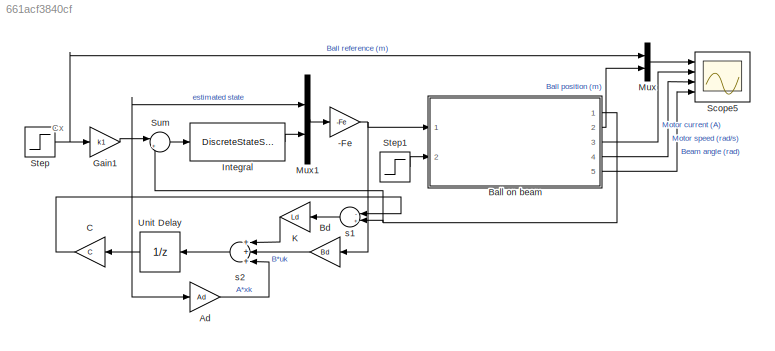
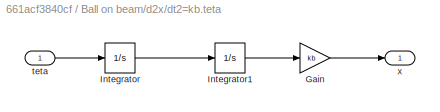
MODEL slx_661acf3840cf
KIND model
CONFIG AbsTol = auto
CONFIG EnableMultiTasking = on
CONFIG FixedStep = auto
CONFIG MaxStep = auto
CONFIG MinStep = auto
CONFIG RelTol = 1e-3
CONFIG SampleTimeConstraint = Unconstrained
CONFIG Solver = ode45
CONFIG SolverName = ode45
CONFIG StartTime = 0.0
CONFIG StopTime = 20
BLOCK [Gain] -Fe
  Gain = -Fe
  Multiplication = Matrix(K*u) (u vector)
  OutDataTypeStr = Inherit: Inherit via internal rule
  ParamDataTypeStr = Inherit: Inherit via internal rule
  SaturateOnIntegerOverflow = off
BLOCK [Gain] Ad
  Gain = Ad
  Multiplication = Matrix(K*u) (u vector)
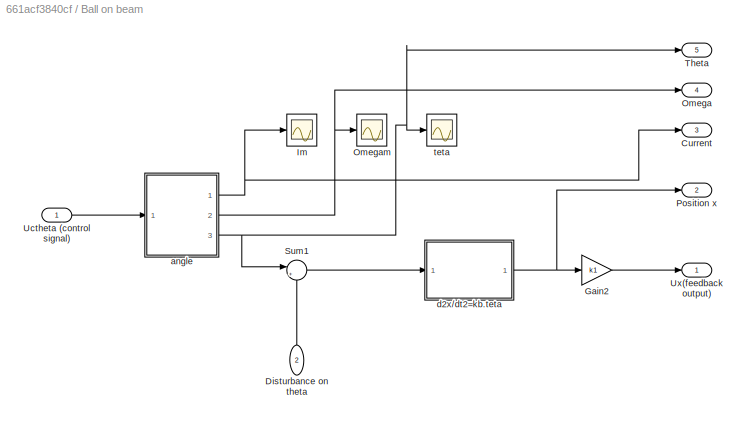
BLOCK [SubSystem] Ball on beam
  Ports = [2, 5]
  RequestExecContextInheritance = off
BLOCK [Outport] Ball on beam/ Omega
  IconDisplay = Port number
  Port = 4
BLOCK [Outport] Ball on beam/ Theta
  IconDisplay = Port number
  Port = 5
BLOCK [Outport] Ball on beam/Current
  IconDisplay = Port number
  Port = 3
BLOCK [Inport] Ball on beam/Disturbance on theta
  IconDisplay = Port number
  Port = 2
BLOCK [Gain] Ball on beam/Gain2
  Gain = k1
  OutDataTypeStr = Inherit: Inherit via internal rule
  ParamDataTypeStr = Inherit: Inherit via internal rule
  SaturateOnIntegerOverflow = off
BLOCK [Scope] Ball on beam/Im
  Floating = off
  NumInputPorts = 1
  Ports = [1]
  ScopeSpecificationString = Simulink.scopes.TimeScopeBlockCfg('CurrentConfiguration', extmgr.ConfigurationSet(extmgr.Configuration('Core','General UI',true),extmgr.Configuration('Core','Source UI',true),extmgr.Configuration('Sources','WiredSimulink',true,'DataLoggingVariableName','ScopeData1'),extmgr.Configuration('Visuals','Time Domain',true,'SerializedDisplays',{struct('MinYLimReal','-19.2391','MaxYLimReal','8.06624','YLab...<+1450ch>
BLOCK [Scope] Ball on beam/Omegam
  Floating = off
  NumInputPorts = 1
  Ports = [1]
  ScopeSpecificationString = Simulink.scopes.TimeScopeBlockCfg('CurrentConfiguration', extmgr.ConfigurationSet(extmgr.Configuration('Core','General UI',true),extmgr.Configuration('Core','Source UI',true),extmgr.Configuration('Sources','WiredSimulink',true,'DataLoggingVariableName','ScopeData2'),extmgr.Configuration('Visuals','Time Domain',true,'SerializedDisplays',{struct('MinYLimReal','-1.00000','MaxYLimReal','1.00000','YLab...<+1431ch>
BLOCK [Outport] Ball on beam/Position x
  IconDisplay = Port number
  Port = 2
BLOCK [Sum] Ball on beam/Sum1
  IconShape = round
  Inputs = |++
  Ports = [2, 1]
BLOCK [Inport] Ball on beam/Uctheta (control signal)
  IconDisplay = Port number
BLOCK [Outport] Ball on beam/Ux(feedback output)
  IconDisplay = Port number
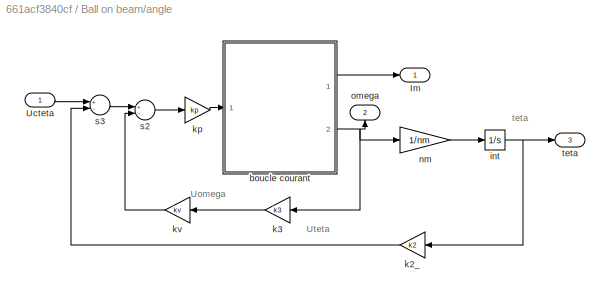
BLOCK [SubSystem] Ball on beam/angle
  Ports = [1, 3]
  RequestExecContextInheritance = off
BLOCK [Outport] Ball on beam/angle/Im
  IconDisplay = Port number
BLOCK [Inport] Ball on beam/angle/Ucteta
  IconDisplay = Port number
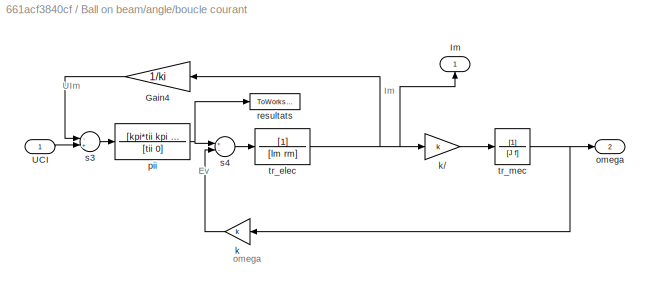
BLOCK [SubSystem] Ball on beam/angle/boucle courant
  Ports = [1, 2]
  RequestExecContextInheritance = off
BLOCK [Gain] Ball on beam/angle/boucle courant/Gain4
  Gain = 1/ki
BLOCK [Outport] Ball on beam/angle/boucle courant/Im
  IconDisplay = Port number
BLOCK [Inport] Ball on beam/angle/boucle courant/UCI
  IconDisplay = Port number
BLOCK [Gain] Ball on beam/angle/boucle courant/k
  Gain = k
BLOCK [Gain] Ball on beam/angle/boucle courant/k// 
  Gain = k
BLOCK [Outport] Ball on beam/angle/boucle courant/omega
  IconDisplay = Port number
  Port = 2
BLOCK [TransferFcn] Ball on beam/angle/boucle courant/pii
  Denominator = [tii 0]
  Numerator = [kpi*tii kpi ]
BLOCK [ToWorkspace] Ball on beam/angle/boucle courant/resultats
  MaxDataPoints = 20000
  Ports = [1]
  VariableName = Um
BLOCK [Sum] Ball on beam/angle/boucle courant/s3
  Inputs = -+
  Ports = [2, 1]
BLOCK [Sum] Ball on beam/angle/boucle courant/s4
  Inputs = +-
  Ports = [2, 1]
BLOCK [TransferFcn] Ball on beam/angle/boucle courant/tr_elec
  Denominator = [lm rm]
BLOCK [TransferFcn] Ball on beam/angle/boucle courant/tr_mec
  Denominator = [J f]
BLOCK [Integrator] Ball on beam/angle/int
  Ports = [1, 1]
BLOCK [Gain] Ball on beam/angle/k2_
  Gain = k2
BLOCK [Gain] Ball on beam/angle/k3
  Gain = k3
BLOCK [Gain] Ball on beam/angle/kp
  Gain = kp
BLOCK [Gain] Ball on beam/angle/kv
  Gain = kv
BLOCK [Gain] Ball on beam/angle/nm
  Gain = 1/nm
BLOCK [Outport] Ball on beam/angle/omega
  IconDisplay = Port number
  Port = 2
BLOCK [Sum] Ball on beam/angle/s2
  Inputs = +-
  Ports = [2, 1]
BLOCK [Sum] Ball on beam/angle/s3
  Inputs = +-
  Ports = [2, 1]
BLOCK [Outport] Ball on beam/angle/teta
  IconDisplay = Port number
  Port = 3
BLOCK [SubSystem] Ball on beam/d2x//dt2=kb.teta 
  Ports = [1, 1]
  RequestExecContextInheritance = off
BLOCK [Gain] Ball on beam/d2x//dt2=kb.teta /Gain
  Gain = kb
  OutDataTypeStr = Inherit: Inherit via internal rule
  ParamDataTypeStr = Inherit: Inherit via internal rule
  SaturateOnIntegerOverflow = off
BLOCK [Integrator] Ball on beam/d2x//dt2=kb.teta /Integrator
  Ports = [1, 1]
BLOCK [Integrator] Ball on beam/d2x//dt2=kb.teta /Integrator1
  Ports = [1, 1]
BLOCK [Inport] Ball on beam/d2x//dt2=kb.teta /teta
  IconDisplay = Port number
BLOCK [Outport] Ball on beam/d2x//dt2=kb.teta /x
  IconDisplay = Port number
BLOCK [Scope] Ball on beam/teta
  Floating = off
  NumInputPorts = 1
  Ports = [1]
  ScopeSpecificationString = Simulink.scopes.TimeScopeBlockCfg('CurrentConfiguration', extmgr.ConfigurationSet(extmgr.Configuration('Core','General UI',true),extmgr.Configuration('Core','Source UI',true),extmgr.Configuration('Sources','WiredSimulink',true),extmgr.Configuration('Visuals','Time Domain',true,'SerializedDisplays',{struct('MinYLimReal','-1.00000','MaxYLimReal','1.00000','YLabelReal','','MinYLimMag','0.00000','MaxY...<+1367ch>
BLOCK [Gain] Bd
  Gain = Bd
  Multiplication = Matrix(K*u) (u vector)
BLOCK [Gain] C
  Gain = C
  Multiplication = Matrix(K*u) (u vector)
BLOCK [Gain] Gain1
  Gain = k1
  OutDataTypeStr = Inherit: Inherit via internal rule
  ParamDataTypeStr = Inherit: Inherit via internal rule
  SaturateOnIntegerOverflow = off
BLOCK [DiscreteStateSpace] Integral
  A = Ai
  B = Bi
  C = Ci
  D = Di
  SampleTime = Te
BLOCK [Gain] K
  Gain = Ld
  Multiplication = Matrix(K*u) (u vector)
BLOCK [Mux] Mux
  DisplayOption = bar
  Inputs = 2
  Ports = [2, 1]
BLOCK [Mux] Mux1
  DisplayOption = bar
  Inputs = 2
  Ports = [2, 1]
BLOCK [Scope] Scope5
  Floating = off
  NumInputPorts = 4
  Ports = [4]
  ScopeSpecificationString = Simulink.scopes.TimeScopeBlockCfg('CurrentConfiguration', extmgr.ConfigurationSet(extmgr.Configuration('Core','General UI',true,'FigureColor',[1 1 1]),extmgr.Configuration('Core','Source UI',true),extmgr.Configuration('Sources','WiredSimulink',true,'DataLoggingVariableName','ScopeData1'),extmgr.Configuration('Visuals','Time Domain',true,'SerializedDisplays',{struct('MinYLimReal','-0.0184','MaxYLim...<+4130ch>
BLOCK [Step] Step
  After = 0.1
  SampleTime = 0
BLOCK [Step] Step1
  After = 1*pi/180
  SampleTime = 0
  Time = 10
BLOCK [Sum] Sum
  IconShape = round
  InputSameDT = off
  Inputs = |+-
  OutDataTypeStr = Inherit: Inherit via internal rule
  Ports = [2, 1]
  SaturateOnIntegerOverflow = off
BLOCK [UnitDelay] Unit Delay
  HasFrameUpgradeWarning = on
  SampleTime = Te
BLOCK [Sum] s1
  Inputs = -+
  Ports = [2, 1]
BLOCK [Sum] s2
  Inputs = +++
  Ports = [3, 1]
ANNOTATION (root): Cx
ANNOTATION Ball on beam/angle: Uomega
ANNOTATION Ball on beam/angle: Uteta
ANNOTATION Ball on beam/angle: teta
ANNOTATION Ball on beam/angle/boucle courant: Ev
ANNOTATION Ball on beam/angle/boucle courant: Im
ANNOTATION Ball on beam/angle/boucle courant: UIm
ANNOTATION Ball on beam/angle/boucle courant: omega
NET -Fe:1 -> Ball on beam:1, Bd:1
LINE Ad:1 -> s2:3
LINE Ball on beam/Disturbance on theta:1 -> Ball on beam/Sum1:2
LINE Ball on beam/Gain2:1 -> Ball on beam/Ux(feedback output):1
LINE Ball on beam/Sum1:1 -> Ball on beam/d2x//dt2=kb.teta :1
LINE Ball on beam/Uctheta (control signal):1 -> Ball on beam/angle:1
LINE Ball on beam/angle/Ucteta:1 -> Ball on beam/angle/s3:1
LINE Ball on beam/angle/boucle courant/Gain4:1 -> Ball on beam/angle/boucle courant/s3:1
LINE Ball on beam/angle/boucle courant/UCI:1 -> Ball on beam/angle/boucle courant/s3:2
LINE Ball on beam/angle/boucle courant/k// :1 -> Ball on beam/angle/boucle courant/tr_mec:1
LINE Ball on beam/angle/boucle courant/k:1 -> Ball on beam/angle/boucle courant/s4:2
NET Ball on beam/angle/boucle courant/pii:1 -> Ball on beam/angle/boucle courant/resultats:1, Ball on beam/angle/boucle courant/s4:1
LINE Ball on beam/angle/boucle courant/s3:1 -> Ball on beam/angle/boucle courant/pii:1
LINE Ball on beam/angle/boucle courant/s4:1 -> Ball on beam/angle/boucle courant/tr_elec:1
NET Ball on beam/angle/boucle courant/tr_elec:1 -> Ball on beam/angle/boucle courant/Gain4:1, Ball on beam/angle/boucle courant/Im:1, Ball on beam/angle/boucle courant/k// :1
NET Ball on beam/angle/boucle courant/tr_mec:1 -> Ball on beam/angle/boucle courant/k:1, Ball on beam/angle/boucle courant/omega:1
LINE Ball on beam/angle/boucle courant:1 -> Ball on beam/angle/Im:1
NET Ball on beam/angle/boucle courant:2 -> Ball on beam/angle/k3:1, Ball on beam/angle/nm:1, Ball on beam/angle/omega:1
NET Ball on beam/angle/int:1 -> Ball on beam/angle/k2_:1, Ball on beam/angle/teta:1
LINE Ball on beam/angle/k2_:1 -> Ball on beam/angle/s3:2
LINE Ball on beam/angle/k3:1 -> Ball on beam/angle/kv:1
LINE Ball on beam/angle/kp:1 -> Ball on beam/angle/boucle courant:1
LINE Ball on beam/angle/kv:1 -> Ball on beam/angle/s2:2
LINE Ball on beam/angle/nm:1 -> Ball on beam/angle/int:1
LINE Ball on beam/angle/s2:1 -> Ball on beam/angle/kp:1
LINE Ball on beam/angle/s3:1 -> Ball on beam/angle/s2:1
NET Ball on beam/angle:1 -> Ball on beam/Current:1, Ball on beam/Im:1
NET Ball on beam/angle:2 -> Ball on beam/ Omega:1, Ball on beam/Omegam:1
NET Ball on beam/angle:3 -> Ball on beam/ Theta:1, Ball on beam/Sum1:1, Ball on beam/teta:1
LINE Ball on beam/d2x//dt2=kb.teta /Gain:1 -> Ball on beam/d2x//dt2=kb.teta /x:1
LINE Ball on beam/d2x//dt2=kb.teta /Integrator1:1 -> Ball on beam/d2x//dt2=kb.teta /Gain:1
LINE Ball on beam/d2x//dt2=kb.teta /Integrator:1 -> Ball on beam/d2x//dt2=kb.teta /Integrator1:1
LINE Ball on beam/d2x//dt2=kb.teta /teta:1 -> Ball on beam/d2x//dt2=kb.teta /Integrator:1
NET Ball on beam/d2x//dt2=kb.teta :1 -> Ball on beam/Gain2:1, Ball on beam/Position x:1
NET Ball on beam:1 -> Sum:2, s1:2
LINE Ball on beam:2 -> Mux:2
LINE Ball on beam:3 -> Scope5:2
LINE Ball on beam:4 -> Scope5:3
LINE Ball on beam:5 -> Scope5:4
LINE Bd:1 -> s2:2
LINE C:1 -> s1:1
LINE Gain1:1 -> Sum:1
LINE Integral:1 -> Mux1:2
LINE K:1 -> s2:1
LINE Mux1:1 -> -Fe:1
LINE Mux:1 -> Scope5:1
LINE Step1:1 -> Ball on beam:2
NET Step:1 -> Gain1:1, Mux:1
LINE Sum:1 -> Integral:1
NET Unit Delay:1 -> Ad:1, C:1, Mux1:1
LINE s1:1 -> K:1
LINE s2:1 -> Unit Delay:1
note: NET lines group one-source signal fan-out (src -> all destinations, sorted); 1:1 wires keep LINE
